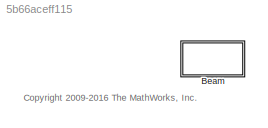
MODEL slx_5b66aceff115
KIND library
CONFIG AbsTol = auto
CONFIG EnableMultiTasking = off
CONFIG FixedStep = auto
CONFIG MaxStep = auto
CONFIG MinStep = auto
CONFIG RelTol = 1e-3
CONFIG SampleTimeConstraint = Unconstrained
CONFIG Solver = ode45
CONFIG SolverName = ode45
CONFIG StartTime = 0.0
CONFIG StopTime = 10.0
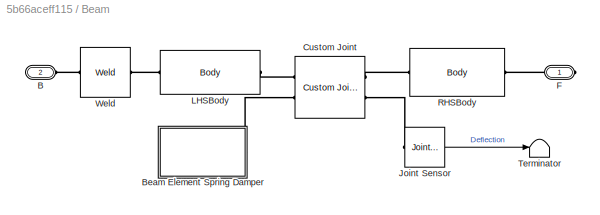
BLOCK [SubSystem] Beam
  Ports = [0, 0, 0, 0, 0, 1, 1]
  RequestExecContextInheritance = off
  Variant = off
BLOCK [PMIOPort] Beam/B
  Port = 2
  Side = Left
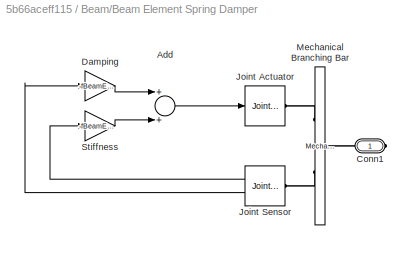
BLOCK [SubSystem] Beam/Beam Element Spring Damper
  Ports = [0, 0, 0, 0, 0, 0, 1]
  RequestExecContextInheritance = off
  Variant = off
BLOCK [Sum] Beam/Beam Element Spring Damper/Add
  InputSameDT = off
  OutDataTypeStr = Inherit: Inherit via internal rule
  Ports = [2, 1]
  SaturateOnIntegerOverflow = off
BLOCK [PMIOPort] Beam/Beam Element Spring Damper/Conn1
  Port = 1
  Side = Right
BLOCK [Gain] Beam/Beam Element Spring Damper/Damping
  Gain = -fBeamElement.matDamping
  OutDataTypeStr = Inherit: Inherit via internal rule
  ParamDataTypeStr = Inherit: Inherit via internal rule
  SaturateOnIntegerOverflow = off
BLOCK [Reference] Beam/Beam Element Spring Damper/Joint Actuator  REF=mblibv1/Sensors & 
Actuators/Joint Actuator
  Ports = [1, 0, 0, 0, 0, 0, 1]
  SourceBlock = mblibv1/Sensors & \nActuators/Joint Actuator
  SourceType = Joint Actuator
BLOCK [Reference] Beam/Beam Element Spring Damper/Joint Sensor  REF=mblibv1/Sensors & 
Actuators/Joint Sensor
  Ports = [0, 2, 0, 0, 0, 1]
  SourceBlock = mblibv1/Sensors & \nActuators/Joint Sensor
  SourceType = Joint Sensor
BLOCK [Reference] Beam/Beam Element Spring Damper/Mechanical Branching Bar  REF=mblibv1/Utilities/Mechanical
Branching
Bar
  Ports = [0, 0, 0, 0, 0, 1, 2]
  SourceBlock = mblibv1/Utilities/Mechanical\nBranching\nBar
  SourceType = Mechanical Branching Bar
BLOCK [Gain] Beam/Beam Element Spring Damper/Stiffness
  Gain = -fBeamElement.EI/fBeamElement.length
  OutDataTypeStr = Inherit: Inherit via internal rule
  ParamDataTypeStr = Inherit: Inherit via internal rule
  SaturateOnIntegerOverflow = off
BLOCK [Reference] Beam/Custom Joint  REF=mblibv1/Joints/Custom Joint
  Ports = [0, 0, 0, 0, 0, 2, 2]
  SourceBlock = mblibv1/Joints/Custom Joint
  SourceType = Custom Joint
BLOCK [PMIOPort] Beam/F
  Port = 1
  Side = Right
BLOCK [Reference] Beam/Joint Sensor  REF=mblibv1/Sensors & 
Actuators/Joint Sensor
  Ports = [0, 1, 0, 0, 0, 1]
  SourceBlock = mblibv1/Sensors & \nActuators/Joint Sensor
  SourceType = Joint Sensor
BLOCK [Reference] Beam/LHSBody  REF=mblibv1/Bodies/Body
  Ports = [0, 0, 0, 0, 0, 1, 1]
  SourceBlock = mblibv1/Bodies/Body
  SourceType = Body
BLOCK [Reference] Beam/RHSBody  REF=mblibv1/Bodies/Body
  Ports = [0, 0, 0, 0, 0, 1, 1]
  SourceBlock = mblibv1/Bodies/Body
  SourceType = Body
BLOCK [Terminator] Beam/Terminator
BLOCK [Reference] Beam/Weld  REF=mblibv1/Joints/Weld
  Ports = [0, 0, 0, 0, 0, 1, 1]
  SourceBlock = mblibv1/Joints/Weld
  SourceType = Weld
ANNOTATION (root): <copyright redacted>
LINE Beam/Beam Element Spring Damper/Add:1 -> Beam/Beam Element Spring Damper/Joint Actuator:1
LINE Beam/Beam Element Spring Damper/Damping:1 -> Beam/Beam Element Spring Damper/Add:1
LINE Beam/Beam Element Spring Damper/Joint Sensor:1 -> Beam/Beam Element Spring Damper/Stiffness:1
LINE Beam/Beam Element Spring Damper/Joint Sensor:2 -> Beam/Beam Element Spring Damper/Damping:1
LINE Beam/Beam Element Spring Damper/Stiffness:1 -> Beam/Beam Element Spring Damper/Add:2
LINE Beam/Joint Sensor:1 -> Beam/Terminator:1
PLINE Beam/B:RConn1 -- Beam/Weld:LConn1
PLINE Beam/Beam Element Spring Damper/Conn1:RConn1 -- Beam/Beam Element Spring Damper/Mechanical Branching Bar:LConn1
PLINE Beam/Beam Element Spring Damper/Joint Actuator:RConn1 -- Beam/Beam Element Spring Damper/Mechanical Branching Bar:RConn1
PLINE Beam/Beam Element Spring Damper/Joint Sensor:LConn1 -- Beam/Beam Element Spring Damper/Mechanical Branching Bar:RConn2
PLINE Beam/Beam Element Spring Damper:RConn1 -- Beam/Custom Joint:LConn2
PLINE Beam/Custom Joint:LConn1 -- Beam/LHSBody:RConn1
PLINE Beam/Custom Joint:RConn1 -- Beam/RHSBody:LConn1
PLINE Beam/Custom Joint:RConn2 -- Beam/Joint Sensor:LConn1
PLINE Beam/F:RConn1 -- Beam/RHSBody:RConn1
PLINE Beam/LHSBody:LConn1 -- Beam/Weld:RConn1
